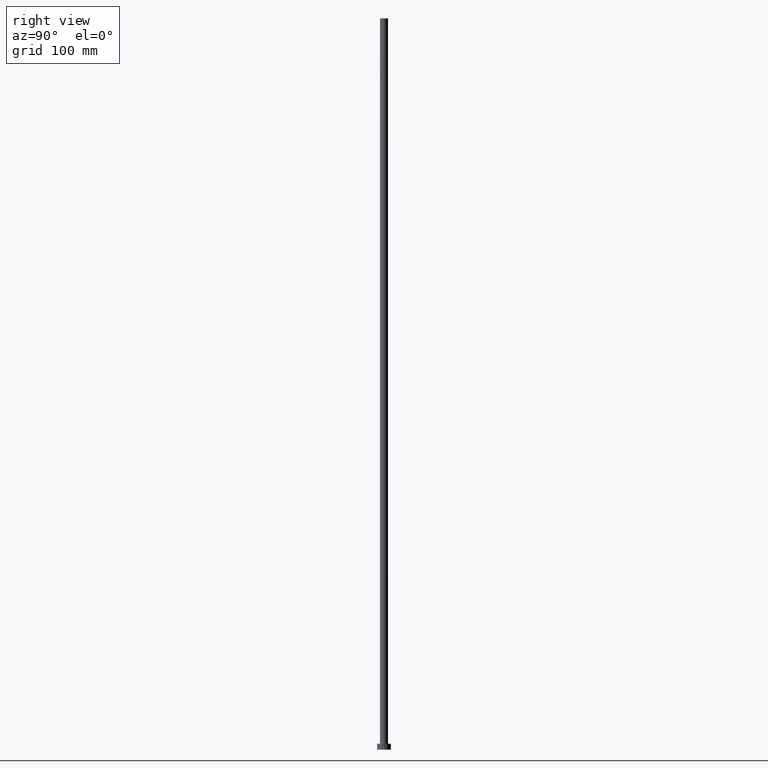
[diagram: clean part render]
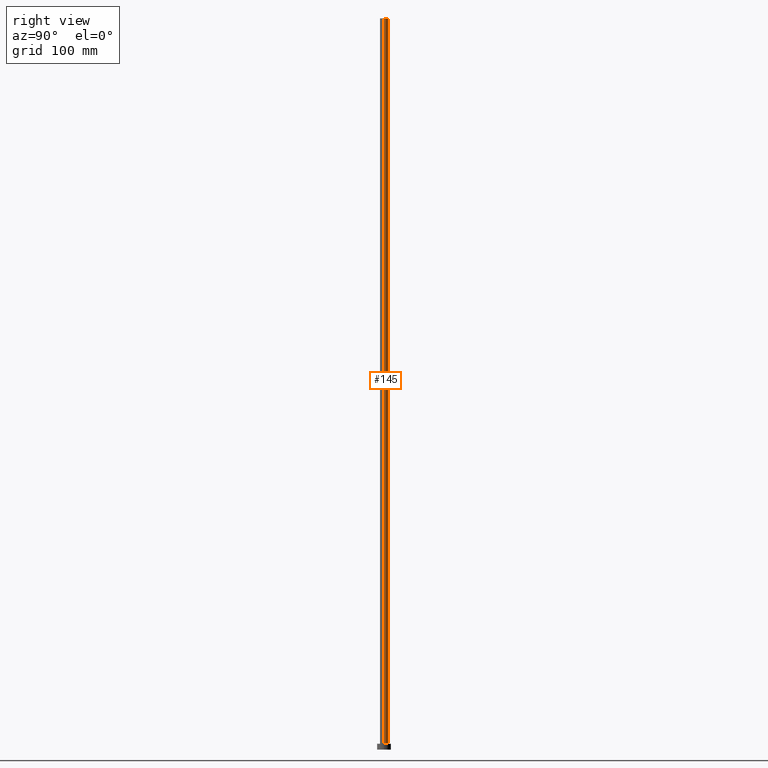
[diagram: same view with one face highlighted and labeled with its STEP entity id]
A machine part, right view. The second image highlights one B-rep face of the part: STEP entity #145.
In plain terms, the highlighted cylindrical surface (edge-blend (fillet) strip) has radius 3.5 mm, axis along (-0, -0, -1).
Its self-contained STEP definition (entity closure, byte-faithful):
#3 = CARTESIAN_POINT ( 'NONE',  ( -3.500000000000000000, 0.000000000000000000, 5.000000000000000000 ) ) ;
#24 = CIRCLE ( 'NONE', #133, 3.500000000000000000 ) ;
#31 = VERTEX_POINT ( 'NONE', #77 ) ;
#35 = ORIENTED_EDGE ( 'NONE', *, *, #91, .F. ) ;
#40 = DIRECTION ( 'NONE',  ( 0.000000000000000000, 0.000000000000000000, 1.000000000000000000 ) ) ;
#44 = FACE_OUTER_BOUND ( 'NONE', #123, .T. ) ;
#45 = AXIS2_PLACEMENT_3D ( 'NONE', #213, #160, #80 ) ;
#54 = ORIENTED_EDGE ( 'NONE', *, *, #112, .T. ) ;
#60 = DIRECTION ( 'NONE',  ( -0.000000000000000000, -0.000000000000000000, -1.000000000000000000 ) ) ;
#77 = CARTESIAN_POINT ( 'NONE',  ( 3.500000000000000000, 4.286263797015736595E-16, 630.0000000000000000 ) ) ;
#79 = DIRECTION ( 'NONE',  ( 1.000000000000000000, 0.000000000000000000, 0.000000000000000000 ) ) ;
#80 = DIRECTION ( 'NONE',  ( -1.000000000000000000, 0.000000000000000000, 0.000000000000000000 ) ) ;
#81 = DIRECTION ( 'NONE',  ( 0.000000000000000000, 0.000000000000000000, 1.000000000000000000 ) ) ;
#82 = EDGE_CURVE ( 'NONE', #166, #141, #230, .T. ) ;
#88 = VERTEX_POINT ( 'NONE', #233 ) ;
#91 = EDGE_CURVE ( 'NONE', #31, #166, #24, .T. ) ;
#92 = VECTOR ( 'NONE', #60, 1000.000000000000000 ) ;
#111 = VECTOR ( 'NONE', #254, 1000.000000000000000 ) ;
#112 = EDGE_CURVE ( 'NONE', #88, #141, #120, .T. ) ;
#116 = CARTESIAN_POINT ( 'NONE',  ( 3.500000000000000000, 4.286263797015736595E-16, 630.0000000000000000 ) ) ;
#120 = CIRCLE ( 'NONE', #216, 3.500000000000000000 ) ;
#123 = EDGE_LOOP ( 'NONE', ( #35, #203, #54, #229 ) ) ;
#133 = AXIS2_PLACEMENT_3D ( 'NONE', #210, #40, #176 ) ;
#141 = VERTEX_POINT ( 'NONE', #3 ) ;
#145 = ADVANCED_FACE ( 'NONE', ( #44 ), #178, .T. ) ;
#156 = LINE ( 'NONE', #116, #111 ) ;
#157 = CARTESIAN_POINT ( 'NONE',  ( 0.000000000000000000, 0.000000000000000000, 5.000000000000000000 ) ) ;
#160 = DIRECTION ( 'NONE',  ( -0.000000000000000000, -0.000000000000000000, -1.000000000000000000 ) ) ;
#166 = VERTEX_POINT ( 'NONE', #237 ) ;
#173 = EDGE_CURVE ( 'NONE', #31, #88, #156, .T. ) ;
#176 = DIRECTION ( 'NONE',  ( 1.000000000000000000, 0.000000000000000000, 0.000000000000000000 ) ) ;
#178 = CYLINDRICAL_SURFACE ( 'NONE', #45, 3.500000000000000000 ) ;
#194 = CARTESIAN_POINT ( 'NONE',  ( -3.500000000000000000, 0.000000000000000000, 630.0000000000000000 ) ) ;
#203 = ORIENTED_EDGE ( 'NONE', *, *, #173, .T. ) ;
#210 = CARTESIAN_POINT ( 'NONE',  ( 0.000000000000000000, 0.000000000000000000, 630.0000000000000000 ) ) ;
#213 = CARTESIAN_POINT ( 'NONE',  ( 0.000000000000000000, 0.000000000000000000, 630.0000000000000000 ) ) ;
#216 = AXIS2_PLACEMENT_3D ( 'NONE', #157, #81, #79 ) ;
#229 = ORIENTED_EDGE ( 'NONE', *, *, #82, .F. ) ;
#230 = LINE ( 'NONE', #194, #92 ) ;
#233 = CARTESIAN_POINT ( 'NONE',  ( 3.500000000000000000, 4.286263797015736595E-16, 5.000000000000000000 ) ) ;
#237 = CARTESIAN_POINT ( 'NONE',  ( -3.500000000000000000, 0.000000000000000000, 630.0000000000000000 ) ) ;
#254 = DIRECTION ( 'NONE',  ( -0.000000000000000000, -0.000000000000000000, -1.000000000000000000 ) ) ;